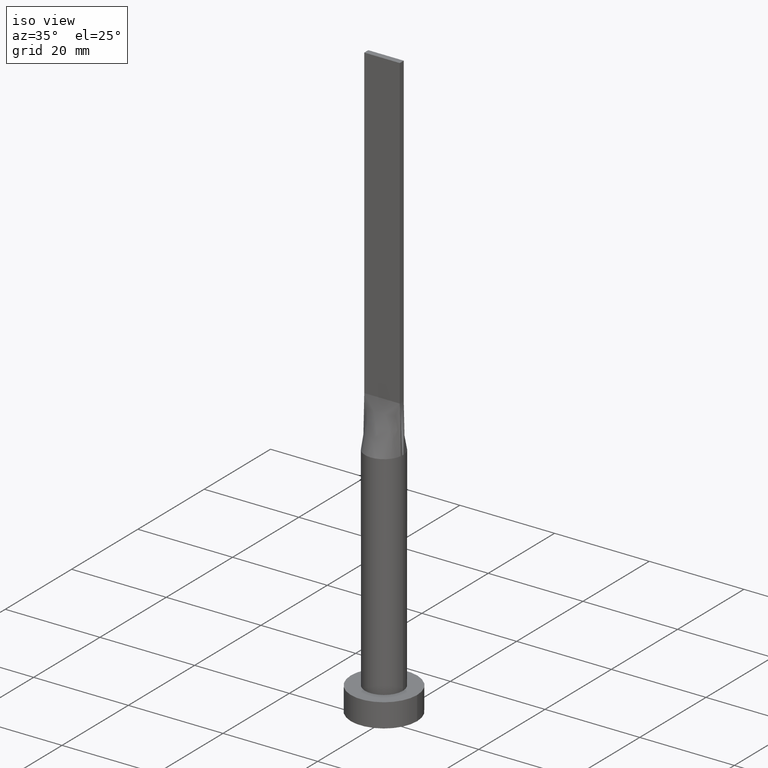
[diagram: clean part render]
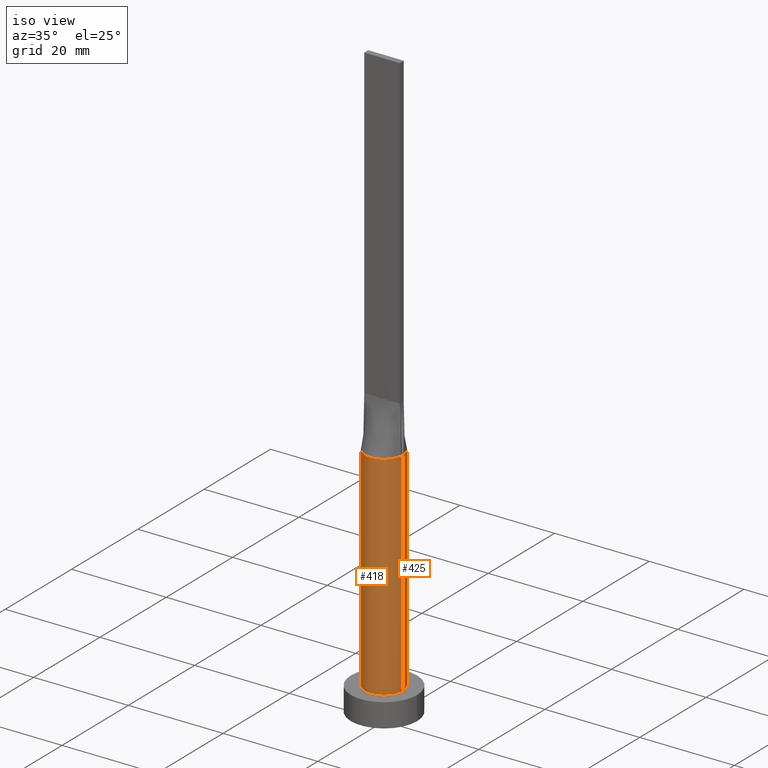
[diagram: same view with one multi-face feature highlighted, each face labeled with its STEP entity id]
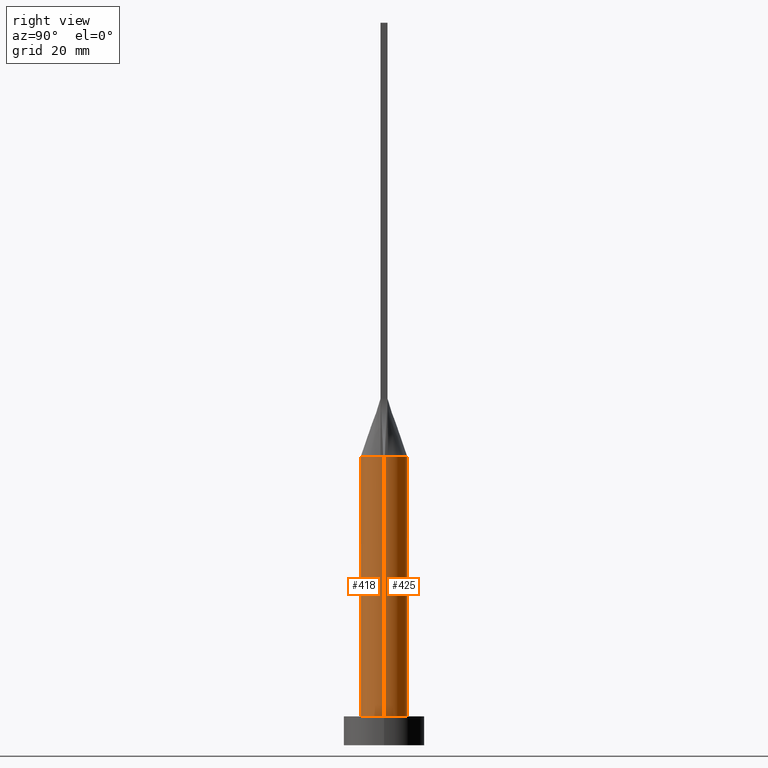
[diagram: same view with one multi-face feature highlighted, each face labeled with its STEP entity id]
A machine part, iso view. The highlighted faces form ONE feature: a constant-radius fillet chain: 2 tangent blend faces with common blend radius 4 mm. The faces share edges in the B-rep.
A second angle (right view) of the same feature is appended — it is thin or edge-on in the first view.
Their STEP definitions:
[1] entity #418 (Cylinder):
#2 = CARTESIAN_POINT ( 'NONE',  ( -3.950111798046394007, -0.6320171791297864994, 49.99999999999999289 ) ) ;
#23 = LINE ( 'NONE', #203, #523 ) ;
#28 = CARTESIAN_POINT ( 'NONE',  ( 0.000000000000000000, 0.000000000000000000, 5.000000000000000000 ) ) ;
#45 = CARTESIAN_POINT ( 'NONE',  ( 4.000000000000000000, 4.898587196589411843E-16, 49.99999999999999289 ) ) ;
#46 = ORIENTED_EDGE ( 'NONE', *, *, #162, .F. ) ;
#57 = ORIENTED_EDGE ( 'NONE', *, *, #80, .T. ) ;
#76 = ORIENTED_EDGE ( 'NONE', *, *, #551, .F. ) ;
#78 = CARTESIAN_POINT ( 'NONE',  ( -4.000000000000000000, 0.000000000000000000, 5.000000000000000000 ) ) ;
#80 = EDGE_CURVE ( 'NONE', #119, #495, #23, .T. ) ;
#94 = DIRECTION ( 'NONE',  ( 1.000000000000000000, 1.065814103640150279E-14, 0.000000000000000000 ) ) ;
#96 = EDGE_LOOP ( 'NONE', ( #76, #46, #454, #534, #57, #355 ) ) ;
#102 = EDGE_CURVE ( 'NONE', #495, #434, #351, .T. ) ;
#106 = CARTESIAN_POINT ( 'NONE',  ( 3.999842262273348936, 9.852009208038395466E-16, 49.99999999999999289 ) ) ;
#119 = VERTEX_POINT ( 'NONE', #544 ) ;
#124 = DIRECTION ( 'NONE',  ( 0.000000000000000000, 0.000000000000000000, 1.000000000000000000 ) ) ;
#134 = VERTEX_POINT ( 'NONE', #252 ) ;
#148 = CARTESIAN_POINT ( 'NONE',  ( 0.000000000000000000, 0.000000000000000000, 49.99999999999999289 ) ) ;
#162 = EDGE_CURVE ( 'NONE', #134, #343, #285, .T. ) ;
#189 = AXIS2_PLACEMENT_3D ( 'NONE', #148, #417, #407 ) ;
#190 = FACE_OUTER_BOUND ( 'NONE', #96, .T. ) ;
#203 = CARTESIAN_POINT ( 'NONE',  ( -4.000000000000000000, 0.000000000000000000, 49.99999999999999289 ) ) ;
#213 = VECTOR ( 'NONE', #258, 1000.000000000000000 ) ;
#216 = DIRECTION ( 'NONE',  ( 0.000000000000000000, 0.000000000000000000, 1.000000000000000000 ) ) ;
#237 = DIRECTION ( 'NONE',  ( 1.000000000000000000, 0.000000000000000000, 0.000000000000000000 ) ) ;
#252 = CARTESIAN_POINT ( 'NONE',  ( 3.950116941581656604, -0.6320178829360036943, 49.99999999999999289 ) ) ;
#258 = DIRECTION ( 'NONE',  ( -0.000000000000000000, -0.000000000000000000, -1.000000000000000000 ) ) ;
#272 = DIRECTION ( 'NONE',  ( 0.000000000000000000, 0.000000000000000000, 1.000000000000000000 ) ) ;
#279 = AXIS2_PLACEMENT_3D ( 'NONE', #486, #216, #392 ) ;
#285 = CIRCLE ( 'NONE', #430, 4.000000000000000000 ) ;
#332 = EDGE_CURVE ( 'NONE', #580, #134, #501, .T. ) ;
#343 = VERTEX_POINT ( 'NONE', #106 ) ;
#348 = LINE ( 'NONE', #45, #213 ) ;
#351 = CIRCLE ( 'NONE', #443, 4.000000000000000000 ) ;
#355 = ORIENTED_EDGE ( 'NONE', *, *, #102, .T. ) ;
#385 = DIRECTION ( 'NONE',  ( 0.000000000000000000, 0.000000000000000000, 1.000000000000000000 ) ) ;
#392 = DIRECTION ( 'NONE',  ( 1.000000000000000000, 0.000000000000000000, 0.000000000000000000 ) ) ;
#407 = DIRECTION ( 'NONE',  ( -1.000000000000000000, 0.000000000000000000, 0.000000000000000000 ) ) ;
#417 = DIRECTION ( 'NONE',  ( -0.000000000000000000, -0.000000000000000000, -1.000000000000000000 ) ) ;
#418 = ADVANCED_FACE ( 'NONE', ( #190 ), #460, .T. ) ;
#430 = AXIS2_PLACEMENT_3D ( 'NONE', #569, #124, #94 ) ;
#434 = VERTEX_POINT ( 'NONE', #503 ) ;
#443 = AXIS2_PLACEMENT_3D ( 'NONE', #28, #385, #557 ) ;
#454 = ORIENTED_EDGE ( 'NONE', *, *, #332, .F. ) ;
#460 = CYLINDRICAL_SURFACE ( 'NONE', #189, 4.000000000000000000 ) ;
#463 = CARTESIAN_POINT ( 'NONE',  ( 0.000000000000000000, 0.000000000000000000, 49.99999999999999289 ) ) ;
#470 = DIRECTION ( 'NONE',  ( -0.000000000000000000, -0.000000000000000000, -1.000000000000000000 ) ) ;
#486 = CARTESIAN_POINT ( 'NONE',  ( 0.000000000000000000, 0.000000000000000000, 49.99999999999999289 ) ) ;
#491 = AXIS2_PLACEMENT_3D ( 'NONE', #463, #272, #237 ) ;
#495 = VERTEX_POINT ( 'NONE', #78 ) ;
#501 = CIRCLE ( 'NONE', #491, 4.000000000000000000 ) ;
#503 = CARTESIAN_POINT ( 'NONE',  ( 4.000000000000000000, 4.898587196589411843E-16, 5.000000000000000000 ) ) ;
#509 = EDGE_CURVE ( 'NONE', #119, #580, #560, .T. ) ;
#523 = VECTOR ( 'NONE', #470, 1000.000000000000000 ) ;
#534 = ORIENTED_EDGE ( 'NONE', *, *, #509, .F. ) ;
#544 = CARTESIAN_POINT ( 'NONE',  ( -3.999842262273348048, -9.740943882706924690E-16, 49.99999999999999289 ) ) ;
#551 = EDGE_CURVE ( 'NONE', #343, #434, #348, .T. ) ;
#557 = DIRECTION ( 'NONE',  ( 1.000000000000000000, 0.000000000000000000, 0.000000000000000000 ) ) ;
#560 = CIRCLE ( 'NONE', #279, 4.000000000000000000 ) ;
#569 = CARTESIAN_POINT ( 'NONE',  ( 0.000000000000000000, 0.000000000000000000, 49.99999999999999289 ) ) ;
#580 = VERTEX_POINT ( 'NONE', #2 ) ;
[2] entity #425 (Cylinder):
#1 = CARTESIAN_POINT ( 'NONE',  ( 3.800365609718893367, 1.311488165564687058, 49.99999999999998579 ) ) ;
#5 = CARTESIAN_POINT ( 'NONE',  ( -3.800365609718893811, 1.311488165564686392, 49.99999999999999289 ) ) ;
#13 = CARTESIAN_POINT ( 'NONE',  ( 0.5684794080625145130, 4.000000000000000000, 49.99999999999999289 ) ) ;
#16 = CARTESIAN_POINT ( 'NONE',  ( 3.950097303404374038, 0.6320148730971578699, 49.99999999999999289 ) ) ;
#23 = LINE ( 'NONE', #203, #523 ) ;
#45 = CARTESIAN_POINT ( 'NONE',  ( 4.000000000000000000, 4.898587196589411843E-16, 49.99999999999999289 ) ) ;
#55 = DIRECTION ( 'NONE',  ( 1.000000000000000000, 0.000000000000000000, 0.000000000000000000 ) ) ;
#58 = CARTESIAN_POINT ( 'NONE',  ( 1.134810363096318664, 3.874001625491799050, 49.99999999999999289 ) ) ;
#63 = CARTESIAN_POINT ( 'NONE',  ( -2.127794970397209884, 3.430476893735948440, 49.99999999999999289 ) ) ;
#66 = CIRCLE ( 'NONE', #465, 4.000000000000000000 ) ;
#78 = CARTESIAN_POINT ( 'NONE',  ( -4.000000000000000000, 0.000000000000000000, 5.000000000000000000 ) ) ;
#80 = EDGE_CURVE ( 'NONE', #119, #495, #23, .T. ) ;
#82 = DIRECTION ( 'NONE',  ( 0.000000000000000000, 0.000000000000000000, 1.000000000000000000 ) ) ;
#84 = ORIENTED_EDGE ( 'NONE', *, *, #261, .F. ) ;
#99 = CARTESIAN_POINT ( 'NONE',  ( 3.461914487322979017, 2.043998057340944197, 49.99999999999997158 ) ) ;
#106 = CARTESIAN_POINT ( 'NONE',  ( 3.999842262273348936, 9.852009208038395466E-16, 49.99999999999999289 ) ) ;
#107 = CARTESIAN_POINT ( 'NONE',  ( -0.5684794080625158452, 3.999999999999999112, 49.99999999999999289 ) ) ;
#112 = CIRCLE ( 'NONE', #234, 4.000000000000000000 ) ;
#119 = VERTEX_POINT ( 'NONE', #544 ) ;
#130 = AXIS2_PLACEMENT_3D ( 'NONE', #310, #82, #387 ) ;
#131 = AXIS2_PLACEMENT_3D ( 'NONE', #367, #321, #329 ) ;
#132 = CARTESIAN_POINT ( 'NONE',  ( 3.950097303404374038, 0.6320148730971578699, 49.99999999999999289 ) ) ;
#143 = ORIENTED_EDGE ( 'NONE', *, *, #551, .T. ) ;
#147 = VERTEX_POINT ( 'NONE', #132 ) ;
#186 = CARTESIAN_POINT ( 'NONE',  ( 2.553164211252348714, 3.116528153703943538, 49.99999999999999289 ) ) ;
#198 = CARTESIAN_POINT ( 'NONE',  ( -1.134810363096319996, 3.874001625491799938, 50.00000000000000711 ) ) ;
#203 = CARTESIAN_POINT ( 'NONE',  ( -4.000000000000000000, 0.000000000000000000, 49.99999999999999289 ) ) ;
#213 = VECTOR ( 'NONE', #258, 1000.000000000000000 ) ;
#234 = AXIS2_PLACEMENT_3D ( 'NONE', #530, #440, #308 ) ;
#236 = ORIENTED_EDGE ( 'NONE', *, *, #462, .T. ) ;
#239 = CARTESIAN_POINT ( 'NONE',  ( -3.461914487322979905, 2.043998057340944197, 50.00000000000000711 ) ) ;
#253 = EDGE_LOOP ( 'NONE', ( #84, #143, #236, #520, #516, #292 ) ) ;
#258 = DIRECTION ( 'NONE',  ( -0.000000000000000000, -0.000000000000000000, -1.000000000000000000 ) ) ;
#261 = EDGE_CURVE ( 'NONE', #343, #147, #340, .T. ) ;
#280 = CARTESIAN_POINT ( 'NONE',  ( -3.897760447583618504, 0.9569750049467115049, 50.00000000000001421 ) ) ;
#282 = DIRECTION ( 'NONE',  ( 0.000000000000000000, 0.000000000000000000, 1.000000000000000000 ) ) ;
#292 = ORIENTED_EDGE ( 'NONE', *, *, #378, .F. ) ;
#308 = DIRECTION ( 'NONE',  ( 1.000000000000000000, 0.000000000000000000, 0.000000000000000000 ) ) ;
#310 = CARTESIAN_POINT ( 'NONE',  ( 0.000000000000000000, 0.000000000000000000, 49.99999999999999289 ) ) ;
#311 = CARTESIAN_POINT ( 'NONE',  ( -3.950102418235696522, 0.6320155757311000100, 49.99999999999999289 ) ) ;
#321 = DIRECTION ( 'NONE',  ( -0.000000000000000000, -0.000000000000000000, -1.000000000000000000 ) ) ;
#324 = CARTESIAN_POINT ( 'NONE',  ( 3.897760447583618948, 0.9569750049467118380, 50.00000000000000711 ) ) ;
#329 = DIRECTION ( 'NONE',  ( -1.000000000000000000, 0.000000000000000000, 0.000000000000000000 ) ) ;
#340 = CIRCLE ( 'NONE', #130, 4.000000000000000000 ) ;
#343 = VERTEX_POINT ( 'NONE', #106 ) ;
#348 = LINE ( 'NONE', #45, #213 ) ;
#352 = B_SPLINE_CURVE_WITH_KNOTS ( 'NONE', 3,
 ( #16, #324, #1, #99, #461, #186, #364, #58, #13, #107, #198, #63, #500, #370, #239, #5, #280, #545 ),
 .UNSPECIFIED., .F., .F.,
 ( 4, 2, 2, 2, 2, 2, 2, 2, 4 ),
 ( 0.000000000000000000, 0.1249999999999999445, 0.2499999999999998890, 0.3749999999999998335, 0.4999999999999997780, 0.6249999999999997780, 0.7499999999999998890, 0.8749999999999998890, 1.000000000000000000 ),
 .UNSPECIFIED. ) ;
#364 = CARTESIAN_POINT ( 'NONE',  ( 2.127794970397208107, 3.430476893735948885, 49.99999999999998579 ) ) ;
#367 = CARTESIAN_POINT ( 'NONE',  ( 0.000000000000000000, 0.000000000000000000, 49.99999999999999289 ) ) ;
#370 = CARTESIAN_POINT ( 'NONE',  ( -3.219262664220059023, 2.422342486356523938, 49.99999999999998579 ) ) ;
#372 = EDGE_CURVE ( 'NONE', #477, #119, #66, .T. ) ;
#375 = FACE_OUTER_BOUND ( 'NONE', #253, .T. ) ;
#378 = EDGE_CURVE ( 'NONE', #147, #477, #352, .T. ) ;
#387 = DIRECTION ( 'NONE',  ( 1.000000000000000000, 0.000000000000000000, 0.000000000000000000 ) ) ;
#425 = ADVANCED_FACE ( 'NONE', ( #375 ), #547, .T. ) ;
#434 = VERTEX_POINT ( 'NONE', #503 ) ;
#440 = DIRECTION ( 'NONE',  ( 0.000000000000000000, 0.000000000000000000, 1.000000000000000000 ) ) ;
#461 = CARTESIAN_POINT ( 'NONE',  ( 3.219262664220058134, 2.422342486356523938, 49.99999999999998579 ) ) ;
#462 = EDGE_CURVE ( 'NONE', #434, #495, #112, .T. ) ;
#465 = AXIS2_PLACEMENT_3D ( 'NONE', #493, #282, #55 ) ;
#470 = DIRECTION ( 'NONE',  ( -0.000000000000000000, -0.000000000000000000, -1.000000000000000000 ) ) ;
#477 = VERTEX_POINT ( 'NONE', #311 ) ;
#493 = CARTESIAN_POINT ( 'NONE',  ( 0.000000000000000000, 0.000000000000000000, 49.99999999999999289 ) ) ;
#495 = VERTEX_POINT ( 'NONE', #78 ) ;
#500 = CARTESIAN_POINT ( 'NONE',  ( -2.553164211252348714, 3.116528153703943538, 49.99999999999999289 ) ) ;
#503 = CARTESIAN_POINT ( 'NONE',  ( 4.000000000000000000, 4.898587196589411843E-16, 5.000000000000000000 ) ) ;
#516 = ORIENTED_EDGE ( 'NONE', *, *, #372, .F. ) ;
#520 = ORIENTED_EDGE ( 'NONE', *, *, #80, .F. ) ;
#523 = VECTOR ( 'NONE', #470, 1000.000000000000000 ) ;
#530 = CARTESIAN_POINT ( 'NONE',  ( 0.000000000000000000, 0.000000000000000000, 5.000000000000000000 ) ) ;
#544 = CARTESIAN_POINT ( 'NONE',  ( -3.999842262273348048, -9.740943882706924690E-16, 49.99999999999999289 ) ) ;
#545 = CARTESIAN_POINT ( 'NONE',  ( -3.950102418235696522, 0.6320155757311000100, 49.99999999999999289 ) ) ;
#547 = CYLINDRICAL_SURFACE ( 'NONE', #131, 4.000000000000000000 ) ;
#551 = EDGE_CURVE ( 'NONE', #343, #434, #348, .T. ) ;